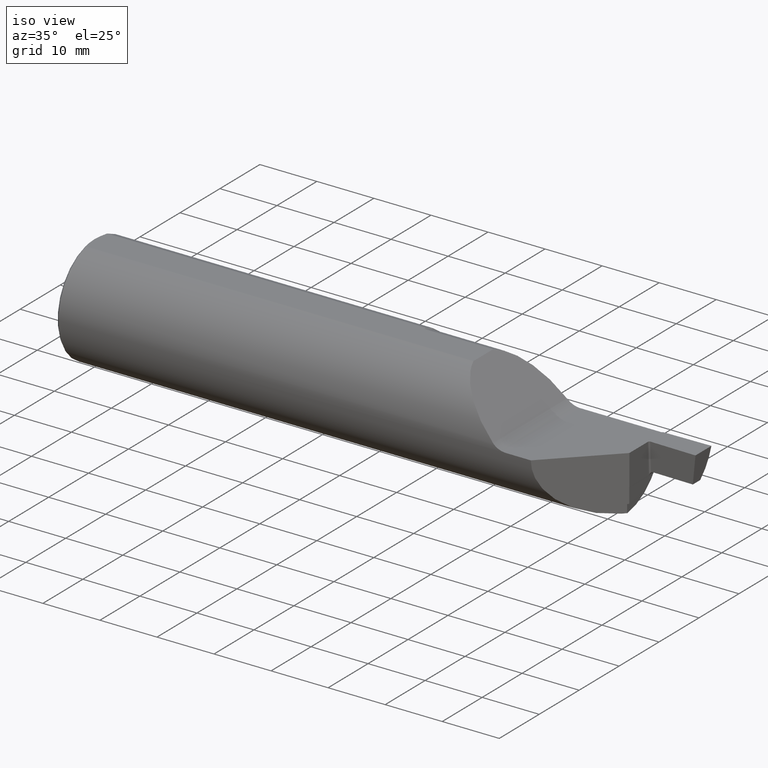
[diagram: clean part render]
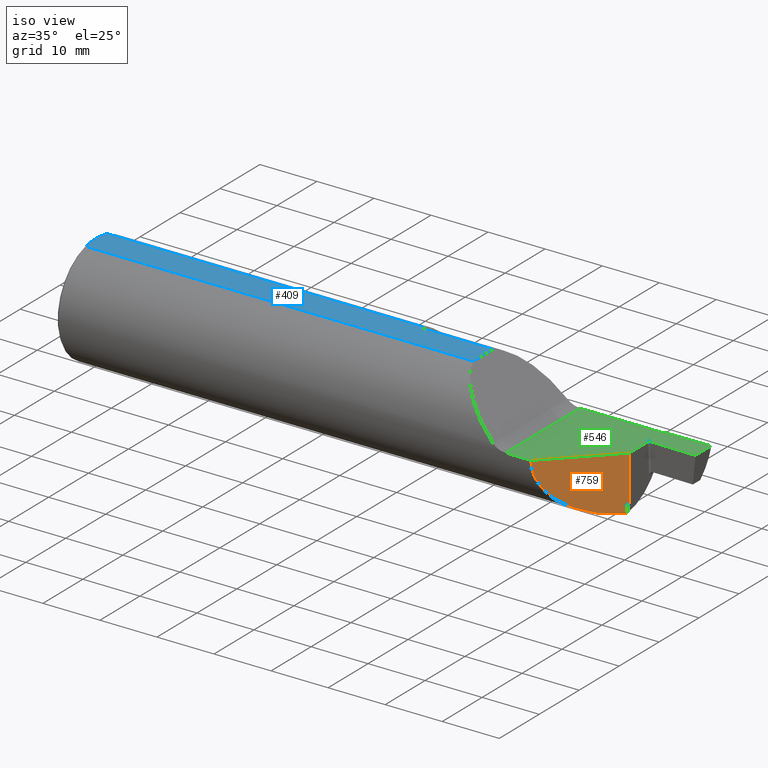
[diagram: same view with three faces highlighted in distinct colors, each labeled with its STEP entity id]
A machine part, iso view with three faces highlighted in distinct colors.
Their STEP definitions:

[orange] entity #759 — the highlighted planar face has unit normal (-0.7071, 0.7071, 0).
#1 = VERTEX_POINT ( 'NONE', #12 ) ;
#12 = CARTESIAN_POINT ( 'NONE',  ( 3.674900000000000055, 0.02505000000000018670, -0.3169667607336639770 ) ) ;
#22 = CARTESIAN_POINT ( 'NONE',  ( 3.663294532400802161, 0.01344453240080179836, -0.3737520757006004279 ) ) ;
#23 = CARTESIAN_POINT ( 'NONE',  ( 3.668892520811800839, 0.01904252081180184478, -0.3173644871018605484 ) ) ;
#29 = CARTESIAN_POINT ( 'NONE',  ( 3.674900000000000055, 0.02505000000000021446, -0.2142541465229824416 ) ) ;
#38 = VECTOR ( 'NONE', #62, 39.37007874015748143 ) ;
#41 = CARTESIAN_POINT ( 'NONE',  ( 3.674933355581517347, 0.02508335558151750244, -0.2135090392727420627 ) ) ;
#62 = DIRECTION ( 'NONE',  ( 0.000000000000000000, 0.000000000000000000, 1.000000000000000000 ) ) ;
#86 = CARTESIAN_POINT ( 'NONE',  ( 3.674999999999999822, 0.02515000000000000221, -0.2127661692096327051 ) ) ;
#87 = CARTESIAN_POINT ( 'NONE',  ( 3.644553700960193598, -0.005296299039805382053, -0.3748125821213424969 ) ) ;
#99 = CARTESIAN_POINT ( 'NONE',  ( 3.664596185113443649, 0.01474618511344372510, -0.3739495906519619828 ) ) ;
#112 = VERTEX_POINT ( 'NONE', #824 ) ;
#113 = CARTESIAN_POINT ( 'NONE',  ( 3.274999999999998135, -0.3748500000000000165, -0.2171298758986383304 ) ) ;
#129 = EDGE_CURVE ( 'NONE', #112, #736, #270, .T. ) ;
#148 = EDGE_CURVE ( 'NONE', #299, #920, #1016, .T. ) ;
#157 = LINE ( 'NONE', #302, #580 ) ;
#158 = CARTESIAN_POINT ( 'NONE',  ( 3.674999999999999822, 0.02515000000000000221, -0.3748500000000000165 ) ) ;
#218 = CARTESIAN_POINT ( 'NONE',  ( 3.672380531148330629, 0.02253053114833035095, -0.3169944607393478941 ) ) ;
#223 = EDGE_CURVE ( 'NONE', #449, #112, #357, .T. ) ;
#232 = DIRECTION ( 'NONE',  ( -0.7071067811865465735, 0.7071067811865484609, 0.000000000000000000 ) ) ;
#234 = EDGE_CURVE ( 'NONE', #736, #574, #432, .T. ) ;
#261 = ORIENTED_EDGE ( 'NONE', *, *, #148, .F. ) ;
#262 = EDGE_CURVE ( 'NONE', #1006, #1, #486, .T. ) ;
#265 = CARTESIAN_POINT ( 'NONE',  ( 3.665820839217660332, 0.01597083921766004680, -0.3745096190950027437 ) ) ;
#268 = ORIENTED_EDGE ( 'NONE', *, *, #234, .F. ) ;
#270 =( BOUNDED_CURVE ( )  B_SPLINE_CURVE ( 3, ( #587, #914, #769, #338 ),
 .UNSPECIFIED., .F., .F. ) 
 B_SPLINE_CURVE_WITH_KNOTS ( ( 4, 4 ),
 ( 4.668742340185195516, 4.669770132691569486 ),
 .UNSPECIFIED. ) 
 CURVE ( )  GEOMETRIC_REPRESENTATION_ITEM ( )  RATIONAL_B_SPLINE_CURVE ( ( 1.000000000000000000, 0.9999999119702156491, 0.9999999119702156491, 1.000000000000000000 ) ) 
 REPRESENTATION_ITEM ( '' )  );
#274 = ORIENTED_EDGE ( 'NONE', *, *, #262, .T. ) ;
#295 = ORIENTED_EDGE ( 'NONE', *, *, #223, .F. ) ;
#299 = VERTEX_POINT ( 'NONE', #86 ) ;
#302 = CARTESIAN_POINT ( 'NONE',  ( 3.674999999999999822, 0.02515000000000000221, 0.000000000000000000 ) ) ;
#308 = DIRECTION ( 'NONE',  ( -0.7071067811865484609, -0.7071067811865465735, 0.000000000000000000 ) ) ;
#310 = CARTESIAN_POINT ( 'NONE',  ( 3.670003566198253964, 0.02015356619825357451, -0.3170017449725741066 ) ) ;
#311 = EDGE_CURVE ( 'NONE', #402, #677, #157, .T. ) ;
#315 = VECTOR ( 'NONE', #989, 39.37007874015748143 ) ;
#332 = CARTESIAN_POINT ( 'NONE',  ( 3.666205748894505678, 0.01635574889450567074, -0.3219798860554299313 ) ) ;
#338 = CARTESIAN_POINT ( 'NONE',  ( 3.665820839217660332, 0.01597083921766004680, -0.3745096190950027437 ) ) ;
#342 = CARTESIAN_POINT ( 'NONE',  ( 3.674900000000000055, 0.02505000000000032548, -0.2149999999999998856 ) ) ;
#357 = LINE ( 'NONE', #440, #498 ) ;
#359 = EDGE_LOOP ( 'NONE', ( #274, #496, #261, #469, #656, #688, #819, #268, #635, #295, #879 ) ) ;
#399 = LINE ( 'NONE', #653, #315 ) ;
#402 = VERTEX_POINT ( 'NONE', #891 ) ;
#418 = CARTESIAN_POINT ( 'NONE',  ( 3.661999999999999922, 0.01214999999999992822, -0.3738535346459931907 ) ) ;
#432 = B_SPLINE_CURVE_WITH_KNOTS ( 'NONE', 3,
 ( #265, #99, #22, #418 ),
 .UNSPECIFIED., .F., .F.,
 ( 4, 4 ),
 ( 2.538510147550652042E-05, 0.0001637050924591598408 ),
 .UNSPECIFIED. ) ;
#440 = CARTESIAN_POINT ( 'NONE',  ( 3.666205748894505678, 0.01635574889450567074, 0.02800000000000001446 ) ) ;
#443 = EDGE_CURVE ( 'NONE', #299, #402, #399, .T. ) ;
#444 = CARTESIAN_POINT ( 'NONE',  ( 3.274999999999999023, -0.3748500000000000165, 0.000000000000000000 ) ) ;
#449 = VERTEX_POINT ( 'NONE', #726 ) ;
#457 = EDGE_CURVE ( 'NONE', #949, #677, #594, .T. ) ;
#458 = CARTESIAN_POINT ( 'NONE',  ( 3.674900000000000055, 0.02505000000000018670, -0.3169667607336639770 ) ) ;
#461 = CARTESIAN_POINT ( 'NONE',  ( 3.673640303505554261, 0.02379030350555431939, -0.3169839404006205563 ) ) ;
#465 = CARTESIAN_POINT ( 'NONE',  ( 3.661999999999999922, 0.01214999999999992822, -0.3738535346459931907 ) ) ;
#469 = ORIENTED_EDGE ( 'NONE', *, *, #443, .T. ) ;
#479 = CARTESIAN_POINT ( 'NONE',  ( 3.671120719405338573, 0.02127071940533841604, -0.3169983214452270492 ) ) ;
#486 =( BOUNDED_CURVE ( )  B_SPLINE_CURVE ( 3, ( #597, #218, #461, #458 ),
 .UNSPECIFIED., .F., .F. ) 
 B_SPLINE_CURVE_WITH_KNOTS ( ( 4, 4 ),
 ( 1.573915743438679016, 1.584677771002641400 ),
 .UNSPECIFIED. ) 
 CURVE ( )  GEOMETRIC_REPRESENTATION_ITEM ( )  RATIONAL_B_SPLINE_CURVE ( ( 1.000000000000000000, 0.9999903482535152932, 0.9999903482535152932, 1.000000000000000000 ) ) 
 REPRESENTATION_ITEM ( '' )  );
#496 = ORIENTED_EDGE ( 'NONE', *, *, #753, .T. ) ;
#498 = VECTOR ( 'NONE', #682, 39.37007874015748143 ) ;
#521 = CARTESIAN_POINT ( 'NONE',  ( 3.674999999999999822, 0.02515000000000000221, -0.2127661692096327051 ) ) ;
#534 = CARTESIAN_POINT ( 'NONE',  ( 3.671120719405338573, 0.02127071940533841604, -0.3169983214452270492 ) ) ;
#573 = AXIS2_PLACEMENT_3D ( 'NONE', #158, #232, #308 ) ;
#574 = VERTEX_POINT ( 'NONE', #894 ) ;
#580 = VECTOR ( 'NONE', #631, 39.37007874015748854 ) ;
#587 = CARTESIAN_POINT ( 'NONE',  ( 3.666205748894505678, 0.01635574889450567074, -0.3744930065810306852 ) ) ;
#594 =( BOUNDED_CURVE ( )  B_SPLINE_CURVE ( 3, ( #850, #605, #113, #444 ),
 .UNSPECIFIED., .F., .T. ) 
 B_SPLINE_CURVE_WITH_KNOTS ( ( 4, 4 ),
 ( 4.726518566283107958, 6.283185307179586232 ),
 .UNSPECIFIED. ) 
 CURVE ( )  GEOMETRIC_REPRESENTATION_ITEM ( )  RATIONAL_B_SPLINE_CURVE ( ( 1.000000000000000000, 0.8080564375980895386, 0.8080564375980895386, 1.000000000000000000 ) ) 
 REPRESENTATION_ITEM ( '' )  );
#597 = CARTESIAN_POINT ( 'NONE',  ( 3.671120719405338573, 0.02127071940533841604, -0.3169983214452270492 ) ) ;
#605 = CARTESIAN_POINT ( 'NONE',  ( 3.427445499169452958, -0.2224045008305460813, -0.3717447289714727598 ) ) ;
#607 = CARTESIAN_POINT ( 'NONE',  ( 3.674900000000000055, 0.02505000000000032548, -0.2149999999999998856 ) ) ;
#613 = EDGE_CURVE ( 'NONE', #449, #1006, #999, .T. ) ;
#631 = DIRECTION ( 'NONE',  ( -0.7071067811865484609, -0.7071067811865464625, 0.000000000000000000 ) ) ;
#635 = ORIENTED_EDGE ( 'NONE', *, *, #129, .F. ) ;
#637 = CARTESIAN_POINT ( 'NONE',  ( 3.666984764641759043, 0.01713476464175928138, -0.3190020867297874152 ) ) ;
#645 = CARTESIAN_POINT ( 'NONE',  ( 3.274999999999999023, -0.3748500000000000165, 0.000000000000000000 ) ) ;
#653 = CARTESIAN_POINT ( 'NONE',  ( 3.674999999999999822, 0.02515000000000000221, -0.3748500000000000165 ) ) ;
#656 = ORIENTED_EDGE ( 'NONE', *, *, #311, .T. ) ;
#677 = VERTEX_POINT ( 'NONE', #645 ) ;
#682 = DIRECTION ( 'NONE',  ( 0.000000000000000000, 0.000000000000000000, -1.000000000000000000 ) ) ;
#688 = ORIENTED_EDGE ( 'NONE', *, *, #457, .F. ) ;
#700 =( BOUNDED_CURVE ( )  B_SPLINE_CURVE ( 3, ( #465, #799, #719, #87 ),
 .UNSPECIFIED., .F., .T. ) 
 B_SPLINE_CURVE_WITH_KNOTS ( ( 4, 4 ),
 ( 4.634173892296693964, 4.680771812721409297 ),
 .UNSPECIFIED. ) 
 CURVE ( )  GEOMETRIC_REPRESENTATION_ITEM ( )  RATIONAL_B_SPLINE_CURVE ( ( 1.000000000000000000, 0.9998190610029968894, 0.9998190610029968894, 1.000000000000000000 ) ) 
 REPRESENTATION_ITEM ( '' )  );
#713 = LINE ( 'NONE', #789, #38 ) ;
#719 = CARTESIAN_POINT ( 'NONE',  ( 3.650376056702548944, 0.0005260567025488105831, -0.3746284343587198418 ) ) ;
#726 = CARTESIAN_POINT ( 'NONE',  ( 3.666205748894505678, 0.01635574889450567074, -0.3219798860554299313 ) ) ;
#736 = VERTEX_POINT ( 'NONE', #1029 ) ;
#744 = EDGE_CURVE ( 'NONE', #574, #949, #700, .T. ) ;
#753 = EDGE_CURVE ( 'NONE', #1, #920, #713, .T. ) ;
#759 = ADVANCED_FACE ( 'NONE', ( #951 ), #1034, .F. ) ;
#769 = CARTESIAN_POINT ( 'NONE',  ( 3.665949145283330601, 0.01609914528333142303, -0.3745041475251386087 ) ) ;
#789 = CARTESIAN_POINT ( 'NONE',  ( 3.674900000000000055, 0.02505000000000018670, -0.3748500000000000165 ) ) ;
#799 = CARTESIAN_POINT ( 'NONE',  ( 3.656192542144860003, 0.006342542144859552797, -0.3743086940134451313 ) ) ;
#819 = ORIENTED_EDGE ( 'NONE', *, *, #744, .F. ) ;
#824 = CARTESIAN_POINT ( 'NONE',  ( 3.666205748894505678, 0.01635574889450567074, -0.3744930065810306852 ) ) ;
#850 = CARTESIAN_POINT ( 'NONE',  ( 3.644553700960193598, -0.005296299039805382053, -0.3748125821213424969 ) ) ;
#875 = CARTESIAN_POINT ( 'NONE',  ( 3.666205748894504790, 0.01635574889450569502, -0.3203862141433885813 ) ) ;
#879 = ORIENTED_EDGE ( 'NONE', *, *, #613, .T. ) ;
#891 = CARTESIAN_POINT ( 'NONE',  ( 3.674999999999999822, 0.02515000000000000221, 0.000000000000000000 ) ) ;
#894 = CARTESIAN_POINT ( 'NONE',  ( 3.661999999999999922, 0.01214999999999992822, -0.3738535346459931907 ) ) ;
#914 = CARTESIAN_POINT ( 'NONE',  ( 3.666077448520240534, 0.01622744852024114726, -0.3744986100199939050 ) ) ;
#917 = CARTESIAN_POINT ( 'NONE',  ( 3.644553700960193598, -0.005296299039805382053, -0.3748125821213424969 ) ) ;
#920 = VERTEX_POINT ( 'NONE', #342 ) ;
#949 = VERTEX_POINT ( 'NONE', #917 ) ;
#951 = FACE_OUTER_BOUND ( 'NONE', #359, .T. ) ;
#989 = DIRECTION ( 'NONE',  ( -0.000000000000000000, -0.000000000000000000, 1.000000000000000000 ) ) ;
#999 = B_SPLINE_CURVE_WITH_KNOTS ( 'NONE', 3,
 ( #332, #875, #637, #23, #310, #479 ),
 .UNSPECIFIED., .F., .F.,
 ( 4, 2, 4 ),
 ( 0.000000000000000000, 0.0001193764764966362190, 0.0002387529529932724381 ),
 .UNSPECIFIED. ) ;
#1006 = VERTEX_POINT ( 'NONE', #534 ) ;
#1016 =( BOUNDED_CURVE ( )  B_SPLINE_CURVE ( 3, ( #521, #41, #29, #607 ),
 .UNSPECIFIED., .F., .F. ) 
 B_SPLINE_CURVE_WITH_KNOTS ( ( 4, 4 ),
 ( 6.193712746975158723, 6.283185307179586232 ),
 .UNSPECIFIED. ) 
 CURVE ( )  GEOMETRIC_REPRESENTATION_ITEM ( )  RATIONAL_B_SPLINE_CURVE ( ( 1.000000000000000000, 0.9993329996662503323, 0.9993329996662503323, 1.000000000000000000 ) ) 
 REPRESENTATION_ITEM ( '' )  );
#1029 = CARTESIAN_POINT ( 'NONE',  ( 3.665820839217660332, 0.01597083921766004680, -0.3745096190950027437 ) ) ;
#1034 = PLANE ( 'NONE',  #573 ) ;

[blue] entity #409 — the highlighted planar face has unit normal (0, 0, -1).
#8 = FACE_OUTER_BOUND ( 'NONE', #826, .T. ) ;
#35 = ORIENTED_EDGE ( 'NONE', *, *, #829, .T. ) ;
#37 = CARTESIAN_POINT ( 'NONE',  ( 2.216455851056046811, 0.08881617181482387435, 0.3598500000000001142 ) ) ;
#60 = VERTEX_POINT ( 'NONE', #568 ) ;
#66 = VERTEX_POINT ( 'NONE', #433 ) ;
#95 = EDGE_CURVE ( 'NONE', #485, #60, #1035, .T. ) ;
#97 = CARTESIAN_POINT ( 'NONE',  ( 0.000000000000000000, 0.000000000000000000, 0.3598500000000002808 ) ) ;
#118 = VECTOR ( 'NONE', #520, 39.37007874015748143 ) ;
#119 = CARTESIAN_POINT ( 'NONE',  ( 2.217202125020027559, 0.08836216410824726530, 0.3598500000000001142 ) ) ;
#125 = CARTESIAN_POINT ( 'NONE',  ( 2.217999999999999527, 0.08836216410824010437, 0.3598500000000000587 ) ) ;
#127 = ORIENTED_EDGE ( 'NONE', *, *, #678, .T. ) ;
#164 = LINE ( 'NONE', #394, #231 ) ;
#170 = LINE ( 'NONE', #745, #118 ) ;
#176 = CARTESIAN_POINT ( 'NONE',  ( 0.01022888784974817708, 0.08794222170467012878, 0.3598500000000000587 ) ) ;
#181 = CARTESIAN_POINT ( 'NONE',  ( 0.001321576766789423927, -0.03539347860735314599, 0.3598500000000000587 ) ) ;
#189 = CARTESIAN_POINT ( 'NONE',  ( 2.210579766348813369, 0.1049785692409357929, 0.3598500000001751409 ) ) ;
#231 = VECTOR ( 'NONE', #316, 39.37007874015748143 ) ;
#236 = DIRECTION ( 'NONE',  ( 0.000000000000000000, 0.000000000000000000, -1.000000000000000000 ) ) ;
#244 = VERTEX_POINT ( 'NONE', #911 ) ;
#249 = VERTEX_POINT ( 'NONE', #189 ) ;
#252 = CARTESIAN_POINT ( 'NONE',  ( 0.01499999999999933678, -0.1049785692415364929, 0.3598500000000000587 ) ) ;
#273 = CARTESIAN_POINT ( 'NONE',  ( 0.006468886088843405803, 0.07069195623599093536, 0.3598500000000000587 ) ) ;
#276 = CARTESIAN_POINT ( 'NONE',  ( 2.211595892602971514, 0.09868602188013046728, 0.3598500000000000587 ) ) ;
#293 = EDGE_CURVE ( 'NONE', #66, #249, #873, .T. ) ;
#316 = DIRECTION ( 'NONE',  ( -0.000000000000000000, 1.000000000000000000, 0.000000000000000000 ) ) ;
#337 = VECTOR ( 'NONE', #952, 39.37007874015748143 ) ;
#355 = CARTESIAN_POINT ( 'NONE',  ( 2.215300617303359143, 0.08993566199321981203, 0.3598500000000000032 ) ) ;
#394 = CARTESIAN_POINT ( 'NONE',  ( 2.689999999999997282, 0.1049785692415360905, 0.3598500000000000587 ) ) ;
#406 = CARTESIAN_POINT ( 'NONE',  ( 0.000000000000000000, 0.000000000000000000, 0.3598500000000002808 ) ) ;
#409 = ADVANCED_FACE ( 'NONE', ( #8 ), #648, .F. ) ;
#417 = CARTESIAN_POINT ( 'NONE',  ( 0.01020778106450298192, -0.08786685509883922218, 0.3598500000000000587 ) ) ;
#420 = ORIENTED_EDGE ( 'NONE', *, *, #474, .F. ) ;
#433 = CARTESIAN_POINT ( 'NONE',  ( 0.01499999999999964730, 0.1049785692415360905, 0.3598500000000000587 ) ) ;
#438 = CARTESIAN_POINT ( 'NONE',  ( 2.210987704991096425, 0.1018285334449099411, 0.3598500000000001697 ) ) ;
#442 = AXIS2_PLACEMENT_3D ( 'NONE', #643, #236, #712 ) ;
#474 = EDGE_CURVE ( 'NONE', #249, #485, #859, .T. ) ;
#485 = VERTEX_POINT ( 'NONE', #679 ) ;
#520 = DIRECTION ( 'NONE',  ( -1.000000000000000000, -0.000000000000000000, -0.000000000000000000 ) ) ;
#563 = CARTESIAN_POINT ( 'NONE',  ( 0.000000000000000000, 0.1049785692415360905, 0.3598500000000000587 ) ) ;
#568 = CARTESIAN_POINT ( 'NONE',  ( 2.689999999999997282, 0.08836216410823956313, 0.3598500000000000587 ) ) ;
#584 = ORIENTED_EDGE ( 'NONE', *, *, #95, .F. ) ;
#595 = CARTESIAN_POINT ( 'NONE',  ( 0.001350055066226010314, 0.03568341562890090662, 0.3598500000000000587 ) ) ;
#643 = CARTESIAN_POINT ( 'NONE',  ( 0.000000000000000000, -0.4748500000000000498, 0.3598500000000000587 ) ) ;
#648 = PLANE ( 'NONE',  #442 ) ;
#649 = CARTESIAN_POINT ( 'NONE',  ( 0.01499999999999933678, -0.1049785692415364929, 0.3598500000000000587 ) ) ;
#676 = B_SPLINE_CURVE_WITH_KNOTS ( 'NONE', 3,
 ( #97, #892, #181, #979, #417, #252 ),
 .UNSPECIFIED., .F., .F.,
 ( 4, 2, 4 ),
 ( 0.01171136364294326528, 0.01304549953612026310, 0.01437963542929726092 ),
 .UNSPECIFIED. ) ;
#678 = EDGE_CURVE ( 'NONE', #1026, #60, #164, .T. ) ;
#679 = CARTESIAN_POINT ( 'NONE',  ( 2.217999999999999527, 0.08836216410824010437, 0.3598500000000000587 ) ) ;
#701 = ORIENTED_EDGE ( 'NONE', *, *, #293, .F. ) ;
#712 = DIRECTION ( 'NONE',  ( -1.000000000000000000, 0.000000000000000000, -0.000000000000000000 ) ) ;
#745 = CARTESIAN_POINT ( 'NONE',  ( 0.000000000000000000, -0.1049785692415360905, 0.3598500000000000587 ) ) ;
#762 = CARTESIAN_POINT ( 'NONE',  ( 2.214846637752241332, 0.09059647494096706444, 0.3598500000000000032 ) ) ;
#779 = CARTESIAN_POINT ( 'NONE',  ( 2.213648801784078746, 0.09265420659088088873, 0.3598500000000000587 ) ) ;
#810 = DIRECTION ( 'NONE',  ( 1.000000000000000000, 0.000000000000000000, 0.000000000000000000 ) ) ;
#812 = CARTESIAN_POINT ( 'NONE',  ( 2.209999999999999520, 0.08836216410823945211, 0.3598500000000000587 ) ) ;
#822 = B_SPLINE_CURVE_WITH_KNOTS ( 'NONE', 3,
 ( #898, #176, #273, #595, #913, #406 ),
 .UNSPECIFIED., .F., .F.,
 ( 4, 2, 4 ),
 ( 0.009040191376426372216, 0.01037577750968481788, 0.01171136364294326528 ),
 .UNSPECIFIED. ) ;
#826 = EDGE_LOOP ( 'NONE', ( #584, #420, #701, #954, #35, #906, #127 ) ) ;
#827 = VECTOR ( 'NONE', #810, 39.37007874015748143 ) ;
#829 = EDGE_CURVE ( 'NONE', #244, #912, #676, .T. ) ;
#835 = CARTESIAN_POINT ( 'NONE',  ( 2.210579766348813369, 0.1049785692409357929, 0.3598500000001751409 ) ) ;
#843 = EDGE_CURVE ( 'NONE', #1026, #912, #170, .T. ) ;
#859 = B_SPLINE_CURVE_WITH_KNOTS ( 'NONE', 3,
 ( #835, #438, #276, #932, #779, #762, #355, #37, #119, #125 ),
 .UNSPECIFIED., .F., .F.,
 ( 4, 2, 2, 2, 4 ),
 ( 0.002289254391228379669, 0.002533600921778679429, 0.002655774187053826924, 0.002716860819691395250, 0.002777947452328963576 ),
 .UNSPECIFIED. ) ;
#873 = LINE ( 'NONE', #563, #827 ) ;
#892 = CARTESIAN_POINT ( 'NONE',  ( -5.609425671560859622E-16, -0.01776532047984436327, 0.3598500000000000587 ) ) ;
#898 = CARTESIAN_POINT ( 'NONE',  ( 0.01499999999999964730, 0.1049785692415360905, 0.3598500000000000587 ) ) ;
#906 = ORIENTED_EDGE ( 'NONE', *, *, #843, .F. ) ;
#911 = CARTESIAN_POINT ( 'NONE',  ( 0.000000000000000000, 0.000000000000000000, 0.3598500000000002808 ) ) ;
#912 = VERTEX_POINT ( 'NONE', #649 ) ;
#913 = CARTESIAN_POINT ( 'NONE',  ( -5.696129831516025155E-16, 0.01778463184081680373, 0.3598500000000000587 ) ) ;
#923 = CARTESIAN_POINT ( 'NONE',  ( 2.689999999999997282, -0.1049785692415360905, 0.3598500000000000587 ) ) ;
#932 = CARTESIAN_POINT ( 'NONE',  ( 2.213065510350179288, 0.09415418544235593101, 0.3598500000000000587 ) ) ;
#933 = EDGE_CURVE ( 'NONE', #66, #244, #822, .T. ) ;
#952 = DIRECTION ( 'NONE',  ( 1.000000000000000000, 0.000000000000000000, 0.000000000000000000 ) ) ;
#954 = ORIENTED_EDGE ( 'NONE', *, *, #933, .T. ) ;
#979 = CARTESIAN_POINT ( 'NONE',  ( 0.006411900415502793521, -0.07039581066864715464, 0.3598500000000000587 ) ) ;
#1026 = VERTEX_POINT ( 'NONE', #923 ) ;
#1035 = LINE ( 'NONE', #812, #337 ) ;

[green] entity #546 — the highlighted planar face has unit normal (0, 0, -1).
#4 = CARTESIAN_POINT ( 'NONE',  ( 3.685174524064373180, 0.2183445374832911623, 0.000000000000000000 ) ) ;
#5 = ORIENTED_EDGE ( 'NONE', *, *, #720, .F. ) ;
#16 = VECTOR ( 'NONE', #655, 39.37007874015748854 ) ;
#46 = CARTESIAN_POINT ( 'NONE',  ( 3.685000000000000053, 0.2083460605317273284, 0.000000000000000000 ) ) ;
#50 = VERTEX_POINT ( 'NONE', #96 ) ;
#54 = DIRECTION ( 'NONE',  ( 1.000000000000000000, 0.000000000000000000, 0.000000000000000000 ) ) ;
#82 = CARTESIAN_POINT ( 'NONE',  ( 0.000000000000000000, -0.3748500000000000165, 0.000000000000000000 ) ) ;
#96 = CARTESIAN_POINT ( 'NONE',  ( 3.674999999999999822, 0.2083460605317273284, 0.000000000000000000 ) ) ;
#126 = LINE ( 'NONE', #365, #202 ) ;
#137 = CARTESIAN_POINT ( 'NONE',  ( 2.209999999999999520, 0.3578492383597801640, 0.000000000000000000 ) ) ;
#138 = ORIENTED_EDGE ( 'NONE', *, *, #927, .T. ) ;
#154 = EDGE_CURVE ( 'NONE', #625, #50, #749, .T. ) ;
#155 = ORIENTED_EDGE ( 'NONE', *, *, #639, .F. ) ;
#157 = LINE ( 'NONE', #302, #580 ) ;
#183 = VECTOR ( 'NONE', #659, 39.37007874015748143 ) ;
#186 = VECTOR ( 'NONE', #54, 39.37007874015748143 ) ;
#200 = DIRECTION ( 'NONE',  ( 0.000000000000000000, 0.000000000000000000, 1.000000000000000000 ) ) ;
#202 = VECTOR ( 'NONE', #764, 39.37007874015748143 ) ;
#206 = ORIENTED_EDGE ( 'NONE', *, *, #533, .F. ) ;
#237 = DIRECTION ( 'NONE',  ( -1.000000000000000000, -1.707404996040159315E-14, 0.000000000000000000 ) ) ;
#260 = LINE ( 'NONE', #4, #803 ) ;
#286 = AXIS2_PLACEMENT_3D ( 'NONE', #46, #200, #757 ) ;
#289 = CARTESIAN_POINT ( 'NONE',  ( 3.049999999999999822, -0.4748500000000000498, 0.000000000000000000 ) ) ;
#302 = CARTESIAN_POINT ( 'NONE',  ( 3.674999999999999822, 0.02515000000000000221, 0.000000000000000000 ) ) ;
#307 = CIRCLE ( 'NONE', #909, 0.008000000000000024453 ) ;
#311 = EDGE_CURVE ( 'NONE', #402, #677, #157, .T. ) ;
#317 = DIRECTION ( 'NONE',  ( -0.9998476951563914916, 0.01745240643727488314, -0.000000000000000000 ) ) ;
#336 = CARTESIAN_POINT ( 'NONE',  ( 3.674999999999999822, 0.2083460605317273284, 0.000000000000000000 ) ) ;
#339 = CARTESIAN_POINT ( 'NONE',  ( 3.685174632301676745, 0.2183445355940019650, 1.920830620545185230E-17 ) ) ;
#365 = CARTESIAN_POINT ( 'NONE',  ( 4.000000000000000000, -0.4748500000000000498, 0.000000000000000000 ) ) ;
#383 = FACE_OUTER_BOUND ( 'NONE', #578, .T. ) ;
#396 = LINE ( 'NONE', #82, #468 ) ;
#402 = VERTEX_POINT ( 'NONE', #891 ) ;
#412 = CARTESIAN_POINT ( 'NONE',  ( 4.340035478385360079, 0.3757845797128895882, 0.000000000000000000 ) ) ;
#427 = VERTEX_POINT ( 'NONE', #575 ) ;
#428 = CARTESIAN_POINT ( 'NONE',  ( 3.101626695296630487, -0.4748500000000000498, 0.000000000000000000 ) ) ;
#468 = VECTOR ( 'NONE', #818, 39.37007874015748143 ) ;
#492 = CARTESIAN_POINT ( 'NONE',  ( 4.000000000000000000, 0.3698492383597805078, -8.579710105101827071E-16 ) ) ;
#506 = ORIENTED_EDGE ( 'NONE', *, *, #669, .F. ) ;
#532 = VERTEX_POINT ( 'NONE', #551 ) ;
#533 = EDGE_CURVE ( 'NONE', #555, #427, #948, .T. ) ;
#546 = ADVANCED_FACE ( 'NONE', ( #383 ), #710, .F. ) ;
#551 = CARTESIAN_POINT ( 'NONE',  ( 4.000000000000000888, 0.2128492383597804793, 0.000000000000000000 ) ) ;
#555 = VERTEX_POINT ( 'NONE', #887 ) ;
#557 = CARTESIAN_POINT ( 'NONE',  ( 3.669803184662418616, 0.3640856315089771589, 1.002542740155892539E-15 ) ) ;
#564 = CARTESIAN_POINT ( 'NONE',  ( 3.661999999999999922, 0.3658492383597803377, 0.000000000000000000 ) ) ;
#575 = CARTESIAN_POINT ( 'NONE',  ( 3.661999999999999922, 0.3578492383597800530, 0.000000000000000000 ) ) ;
#578 = EDGE_LOOP ( 'NONE', ( #5, #206, #138, #155, #588, #754, #977, #506, #883, #978 ) ) ;
#580 = VECTOR ( 'NONE', #631, 39.37007874015748854 ) ;
#581 = DIRECTION ( 'NONE',  ( 0.000000000000000000, -1.000000000000000000, 0.000000000000000000 ) ) ;
#588 = ORIENTED_EDGE ( 'NONE', *, *, #311, .F. ) ;
#621 = VECTOR ( 'NONE', #581, 39.37007874015748143 ) ;
#622 = AXIS2_PLACEMENT_3D ( 'NONE', #289, #629, #869 ) ;
#625 = VERTEX_POINT ( 'NONE', #339 ) ;
#629 = DIRECTION ( 'NONE',  ( 0.000000000000000000, 0.000000000000000000, -1.000000000000000000 ) ) ;
#631 = DIRECTION ( 'NONE',  ( -0.7071067811865484609, -0.7071067811865464625, 0.000000000000000000 ) ) ;
#639 = EDGE_CURVE ( 'NONE', #677, #657, #396, .T. ) ;
#645 = CARTESIAN_POINT ( 'NONE',  ( 3.274999999999999023, -0.3748500000000000165, 0.000000000000000000 ) ) ;
#655 = DIRECTION ( 'NONE',  ( 0.9998476951563914916, 0.01745240643726934937, 0.000000000000000000 ) ) ;
#657 = VERTEX_POINT ( 'NONE', #728 ) ;
#659 = DIRECTION ( 'NONE',  ( 0.000000000000000000, -1.000000000000000000, 0.000000000000000000 ) ) ;
#665 = LINE ( 'NONE', #428, #621 ) ;
#669 = EDGE_CURVE ( 'NONE', #532, #625, #260, .T. ) ;
#677 = VERTEX_POINT ( 'NONE', #645 ) ;
#710 = PLANE ( 'NONE',  #622 ) ;
#720 = EDGE_CURVE ( 'NONE', #427, #771, #307, .T. ) ;
#728 = CARTESIAN_POINT ( 'NONE',  ( 3.101626695296630487, -0.3748500000000000165, 0.000000000000000000 ) ) ;
#749 = CIRCLE ( 'NONE', #286, 0.01000000000000016674 ) ;
#751 = LINE ( 'NONE', #412, #16 ) ;
#754 = ORIENTED_EDGE ( 'NONE', *, *, #857, .F. ) ;
#757 = DIRECTION ( 'NONE',  ( -1.000000000000000000, 0.000000000000000000, 0.000000000000000000 ) ) ;
#764 = DIRECTION ( 'NONE',  ( 0.000000000000000000, 1.000000000000000000, 0.000000000000000000 ) ) ;
#771 = VERTEX_POINT ( 'NONE', #557 ) ;
#795 = VERTEX_POINT ( 'NONE', #492 ) ;
#803 = VECTOR ( 'NONE', #317, 39.37007874015747433 ) ;
#818 = DIRECTION ( 'NONE',  ( -1.000000000000000000, -0.000000000000000000, -0.000000000000000000 ) ) ;
#836 = LINE ( 'NONE', #336, #183 ) ;
#857 = EDGE_CURVE ( 'NONE', #50, #402, #836, .T. ) ;
#869 = DIRECTION ( 'NONE',  ( -1.000000000000000000, 0.000000000000000000, -0.000000000000000000 ) ) ;
#883 = ORIENTED_EDGE ( 'NONE', *, *, #967, .T. ) ;
#887 = CARTESIAN_POINT ( 'NONE',  ( 3.101626695296630487, 0.3578492383597801640, 0.000000000000000000 ) ) ;
#891 = CARTESIAN_POINT ( 'NONE',  ( 3.674999999999999822, 0.02515000000000000221, 0.000000000000000000 ) ) ;
#907 = EDGE_CURVE ( 'NONE', #771, #795, #751, .T. ) ;
#909 = AXIS2_PLACEMENT_3D ( 'NONE', #564, #946, #237 ) ;
#927 = EDGE_CURVE ( 'NONE', #555, #657, #665, .T. ) ;
#946 = DIRECTION ( 'NONE',  ( -0.000000000000000000, -0.000000000000000000, 1.000000000000000000 ) ) ;
#948 = LINE ( 'NONE', #137, #186 ) ;
#967 = EDGE_CURVE ( 'NONE', #532, #795, #126, .T. ) ;
#977 = ORIENTED_EDGE ( 'NONE', *, *, #154, .F. ) ;
#978 = ORIENTED_EDGE ( 'NONE', *, *, #907, .F. ) ;